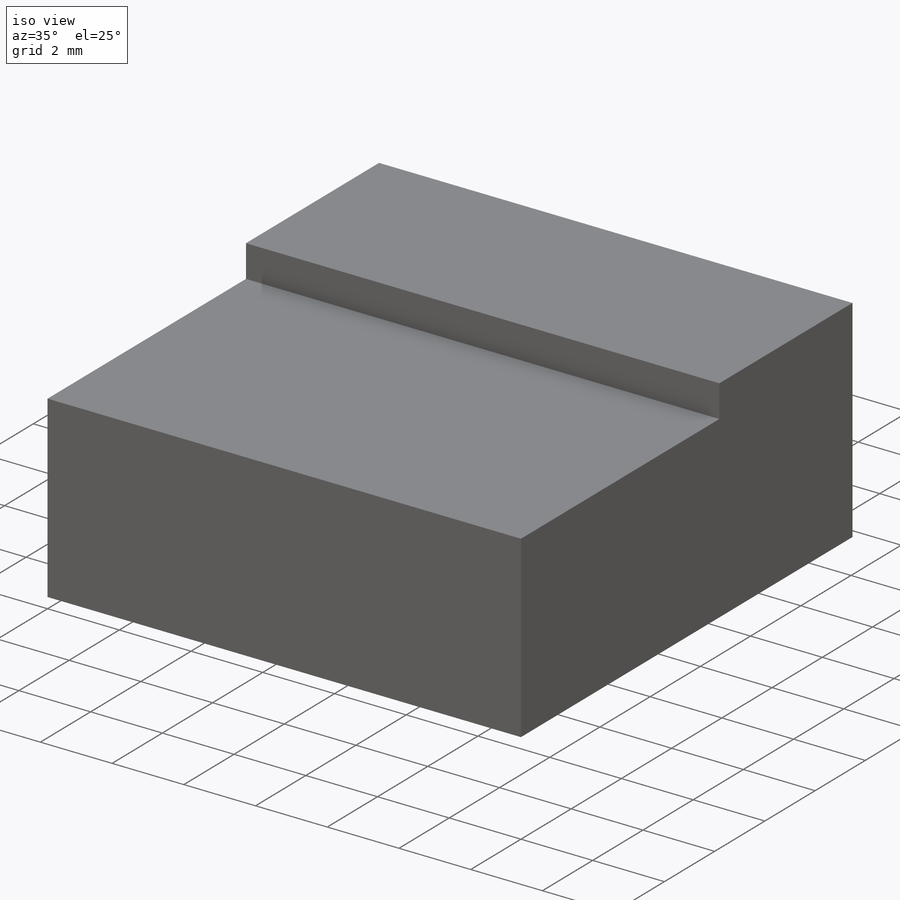
[diagram: iso view]
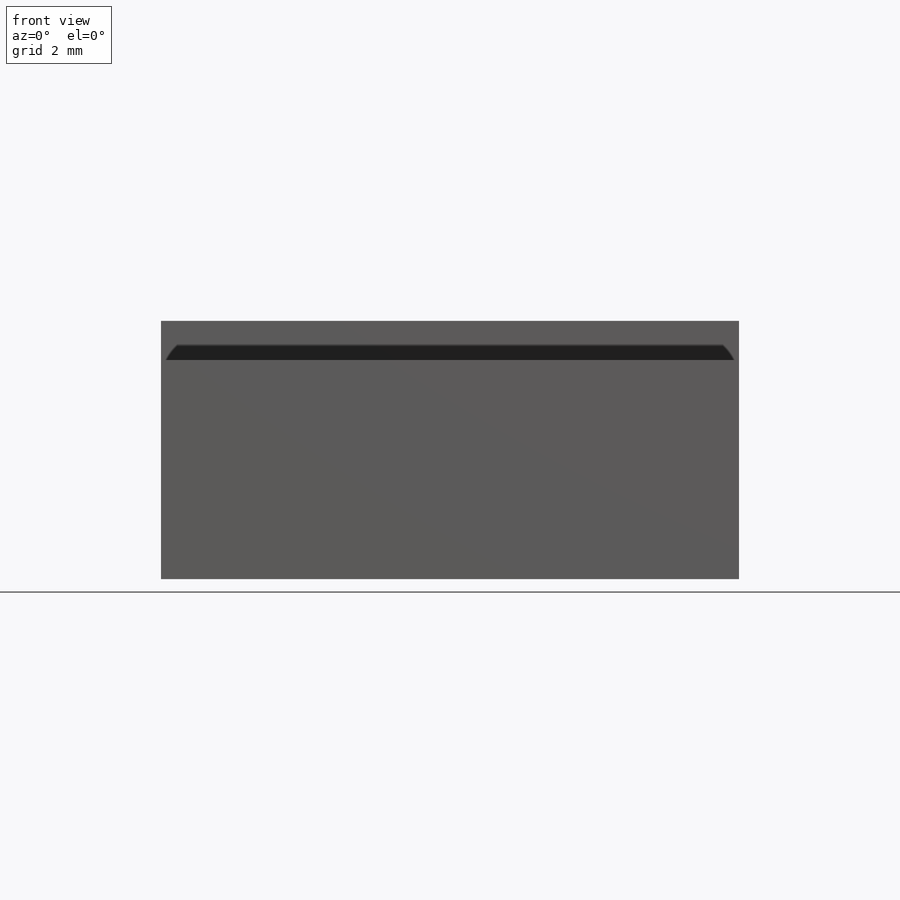
[diagram: front view]
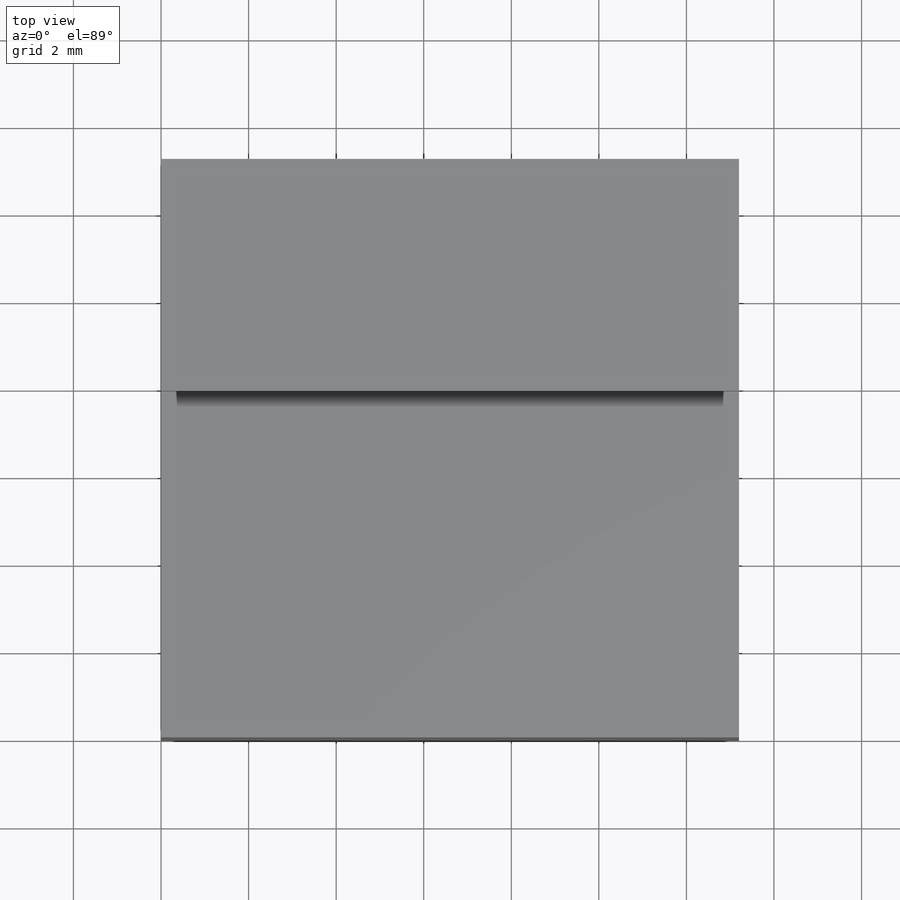
[diagram: top view]
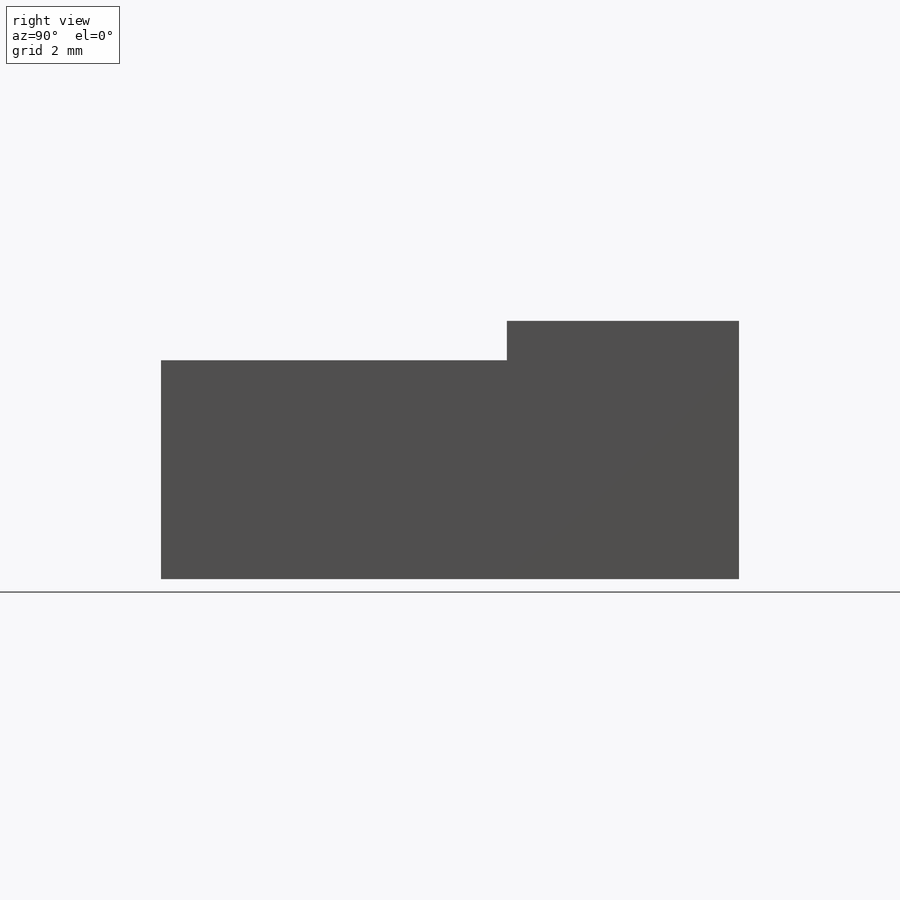
[diagram: right view]
SOLIDWORKS PART (.sldprt)
format: sldprt  version: not decoded by parser v0  size: 188,928 bytes
history: native  units: mm
features: sketch x5, hole x2, material x1, extrude x1 + 1 further entry (+11 scaffold rows collapsed)
feature tree (21):
  scaffold x11  (default folders/planes/origin — collapsed)
  material  "Copper"
  "Origin"  ID=392984584
  sketch  "Sketch3"  dims[c1.D1=~16.200838mm c1.D2=~23.686742mm c2.D1=5.0mm c2.D2=13.2mm c2.D3=~2.748164mm c2.D4=~5.043596mm c3.D3=0.9mm c3.D4=5.3mm c3.D5=~98.431845mm c3.D6=~199.608613mm c4.D5=~5.043596mm]
  extrude  "Boss-Extrude1"  Depth=13.2mm
  hole  "Ø1.5mm Dowel Hole1"  Diameter=1.5mm Depth=6mm
  sketch  "Sketch8"  dims[D1=~4.237105mm]
  sketch  "Sketch7"  dims[hole-wizard template sketch: 47 standard entries collapsed; hole parameters kept: c15.Hole Depth=6.0mm c15.D3=~14.816244mm c15.Drill Angle=118.0deg]
  hole  "Ø1.5mm Dowel Hole7"  Diameter=1.5mm Depth=6mm
  sketch  "Sketch20"
  sketch  "Sketch19"  dims[hole-wizard template sketch: 47 standard entries collapsed; hole parameters kept: c15.Hole Depth=6.0mm c15.D3=~14.816244mm c15.Drill Angle=118.0deg]
decode coverage: 7 of 8 modeling features carry decoded parameters; 1 rows unclassified (native names shown)
note: ~ marks probable driven/reference dimensions
note: suppression state not decoded; provenance and decode notes live in map.json
